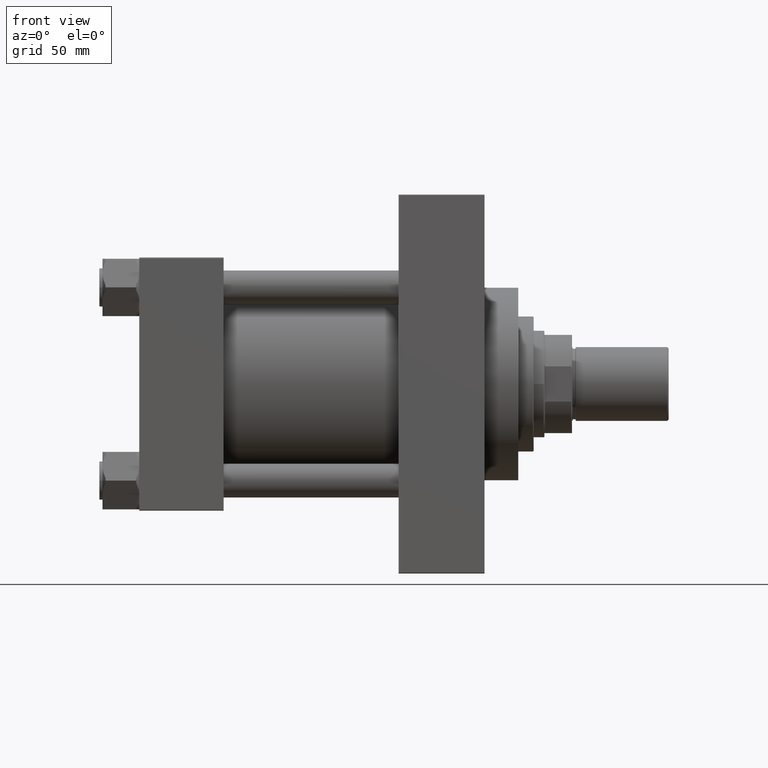
[diagram: clean part render]
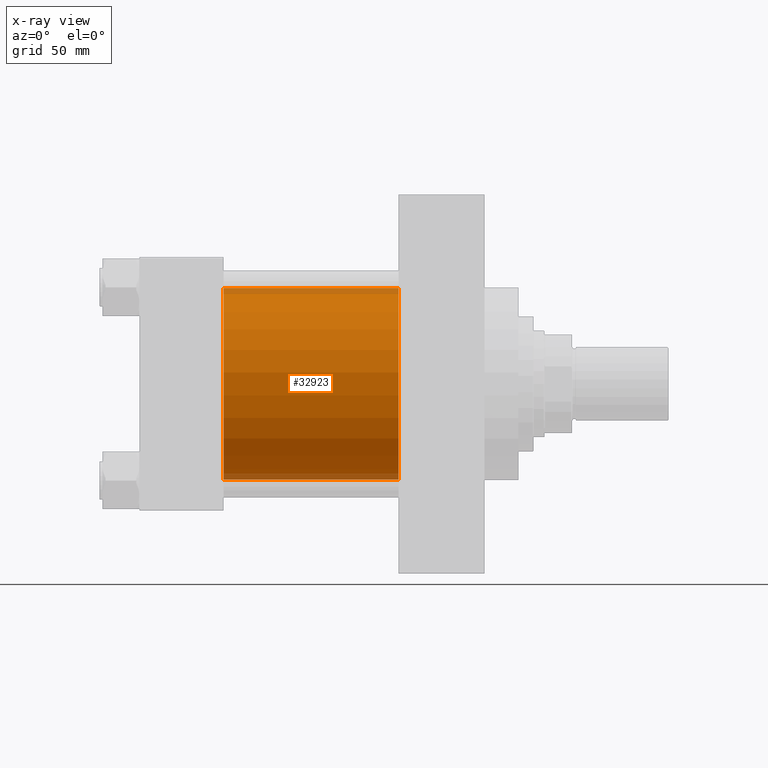
[diagram: x-ray — body ghosted, one internal face saturated and labeled with its STEP entity id]
A machine part, front view, then the same camera in x-ray: the body is ghosted and one INTERNAL B-rep face — a face not visible from any outside direction — is saturated and labeled: STEP entity #32923.
In plain terms, the highlighted cylindrical surface (partial cylindrical patch) has radius 62.5 mm, axis along (-1, -0, -0).
Its self-contained STEP definition (entity closure, byte-faithful):
#297 = VERTEX_POINT ( 'NONE', #47808 ) ;
#2745 = EDGE_LOOP ( 'NONE', ( #45739, #5196, #32951, #31120 ) ) ;
#5196 = ORIENTED_EDGE ( 'NONE', *, *, #18797, .T. ) ;
#5550 = EDGE_CURVE ( 'NONE', #47751, #37604, #46700, .T. ) ;
#11896 = DIRECTION ( 'NONE',  ( 1.000000000000000000, 0.000000000000000000, 0.000000000000000000 ) ) ;
#13085 = DIRECTION ( 'NONE',  ( -1.000000000000000000, -0.000000000000000000, -0.000000000000000000 ) ) ;
#16717 = CARTESIAN_POINT ( 'NONE',  ( 169.0000000000000000, -2.602085213965210642E-15, 0.000000000000000000 ) ) ;
#16941 = AXIS2_PLACEMENT_3D ( 'NONE', #25996, #33044, #39874 ) ;
#16991 = CARTESIAN_POINT ( 'NONE',  ( 169.0000000000000000, -2.602085213965210642E-15, 62.50000000000000000 ) ) ;
#18797 = EDGE_CURVE ( 'NONE', #297, #45166, #38996, .T. ) ;
#22173 = AXIS2_PLACEMENT_3D ( 'NONE', #44098, #33607, #29957 ) ;
#22204 = AXIS2_PLACEMENT_3D ( 'NONE', #16717, #11896, #41623 ) ;
#25277 = CYLINDRICAL_SURFACE ( 'NONE', #16941, 62.50000000000000000 ) ;
#25306 = CARTESIAN_POINT ( 'NONE',  ( 169.0000000000000000, 5.051957280705745584E-15, -62.50000000000000000 ) ) ;
#25874 = CARTESIAN_POINT ( 'NONE',  ( 169.0000000000000000, -2.602085213965210642E-15, 62.50000000000000000 ) ) ;
#25996 = CARTESIAN_POINT ( 'NONE',  ( 169.0000000000000000, -2.602085213965210642E-15, 0.000000000000000000 ) ) ;
#26857 = CIRCLE ( 'NONE', #22173, 62.50000000000000000 ) ;
#29571 = CARTESIAN_POINT ( 'NONE',  ( 55.00000000000000000, -2.602085213965210642E-15, 62.50000000000000000 ) ) ;
#29957 = DIRECTION ( 'NONE',  ( 0.000000000000000000, 0.000000000000000000, -1.000000000000000000 ) ) ;
#30004 = EDGE_CURVE ( 'NONE', #37604, #45166, #26857, .T. ) ;
#31120 = ORIENTED_EDGE ( 'NONE', *, *, #5550, .F. ) ;
#32328 = CARTESIAN_POINT ( 'NONE',  ( 55.00000000000000000, 5.051957280705745584E-15, -62.50000000000000000 ) ) ;
#32820 = DIRECTION ( 'NONE',  ( -1.000000000000000000, -0.000000000000000000, -0.000000000000000000 ) ) ;
#32923 = ADVANCED_FACE ( 'NONE', ( #47430 ), #25277, .F. ) ;
#32951 = ORIENTED_EDGE ( 'NONE', *, *, #30004, .F. ) ;
#33044 = DIRECTION ( 'NONE',  ( -1.000000000000000000, -0.000000000000000000, -0.000000000000000000 ) ) ;
#33607 = DIRECTION ( 'NONE',  ( 1.000000000000000000, 0.000000000000000000, 0.000000000000000000 ) ) ;
#37604 = VERTEX_POINT ( 'NONE', #29571 ) ;
#38996 = LINE ( 'NONE', #25306, #46056 ) ;
#39723 = VECTOR ( 'NONE', #13085, 1000.000000000000000 ) ;
#39874 = DIRECTION ( 'NONE',  ( 0.000000000000000000, 0.000000000000000000, 1.000000000000000000 ) ) ;
#41623 = DIRECTION ( 'NONE',  ( 0.000000000000000000, 0.000000000000000000, -1.000000000000000000 ) ) ;
#41665 = CIRCLE ( 'NONE', #22204, 62.50000000000000000 ) ;
#44098 = CARTESIAN_POINT ( 'NONE',  ( 55.00000000000000000, -2.602085213965210642E-15, 0.000000000000000000 ) ) ;
#45166 = VERTEX_POINT ( 'NONE', #32328 ) ;
#45739 = ORIENTED_EDGE ( 'NONE', *, *, #46037, .T. ) ;
#46037 = EDGE_CURVE ( 'NONE', #47751, #297, #41665, .T. ) ;
#46056 = VECTOR ( 'NONE', #32820, 1000.000000000000000 ) ;
#46700 = LINE ( 'NONE', #16991, #39723 ) ;
#47430 = FACE_OUTER_BOUND ( 'NONE', #2745, .T. ) ;
#47751 = VERTEX_POINT ( 'NONE', #25874 ) ;
#47808 = CARTESIAN_POINT ( 'NONE',  ( 169.0000000000000000, 5.051957280705745584E-15, -62.50000000000000000 ) ) ;